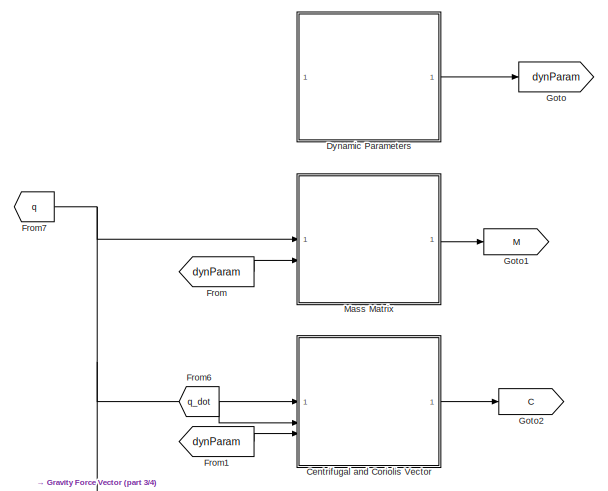
[diagram: root canvas - part 1/4, top left region]
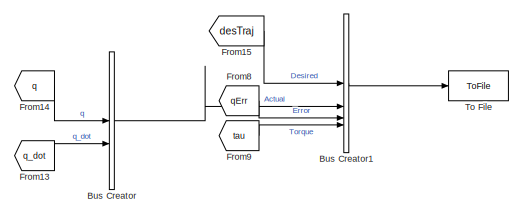
[diagram: root canvas - part 2/4, top right region]
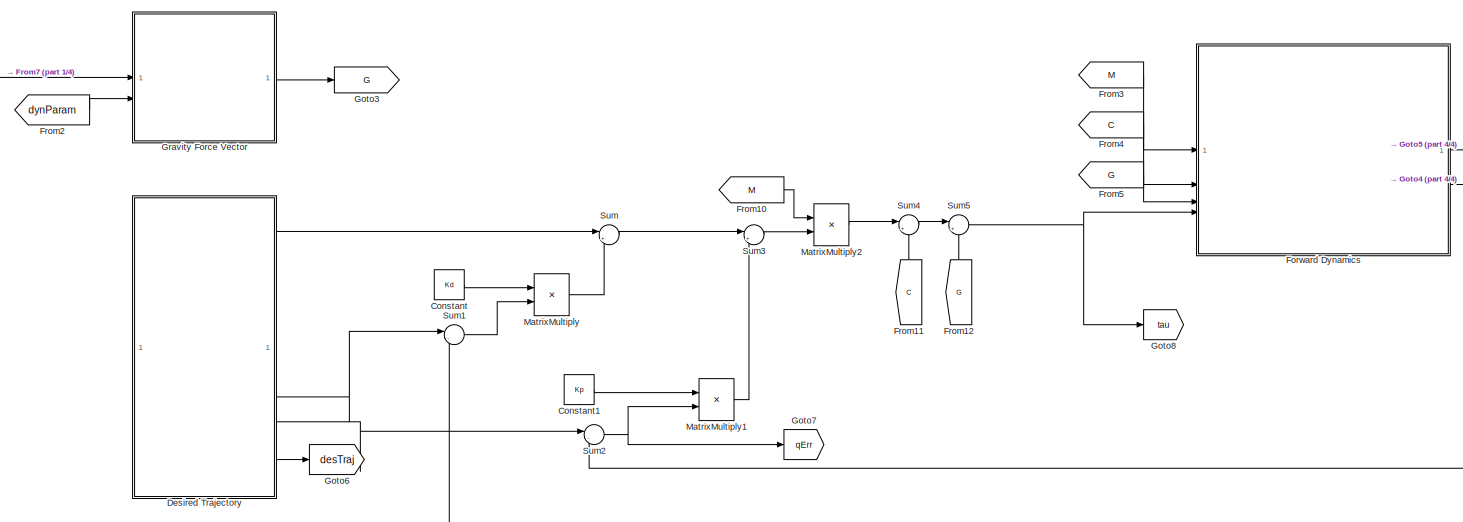
[diagram: root canvas - part 3/4, full width, bottom band]
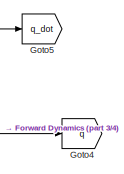
[diagram: root canvas - part 4/4, middle right region]
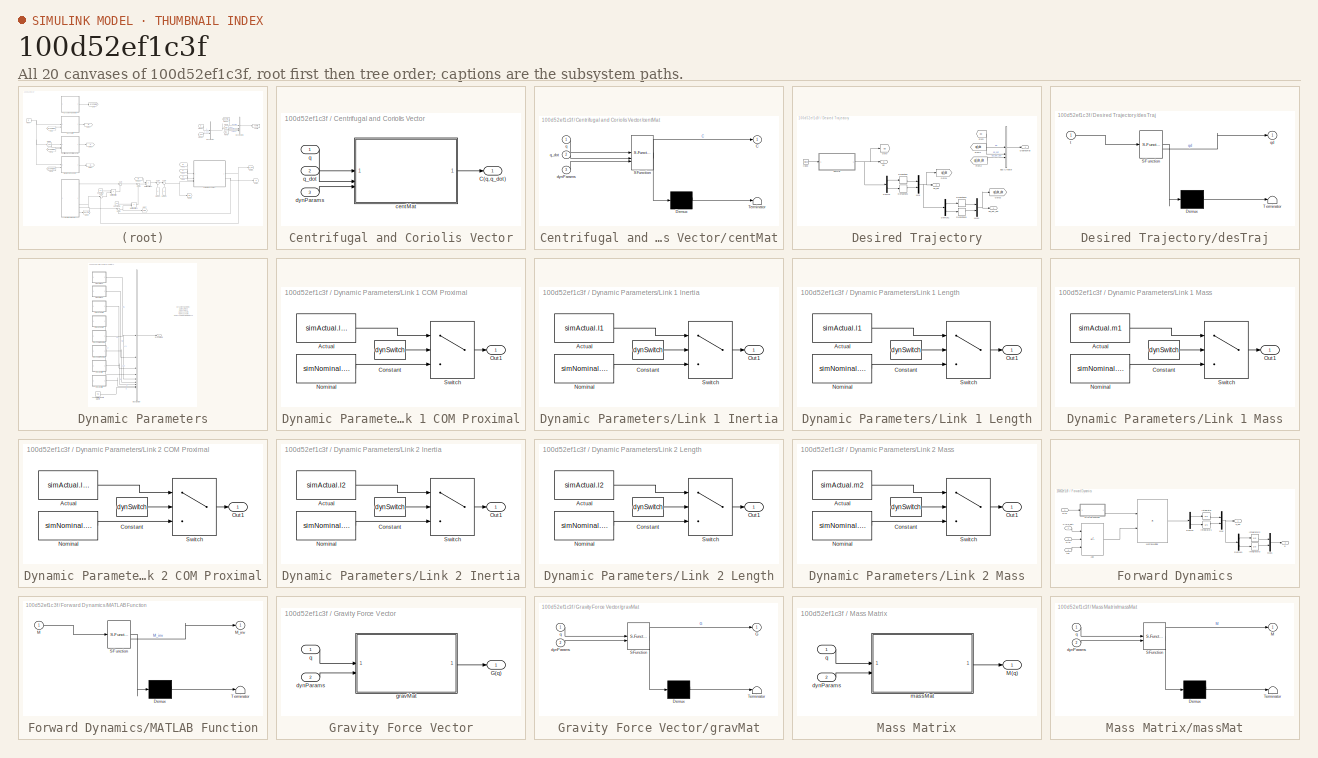
[diagram: thumbnail index - all 20 canvases of the model, root first then tree order]
MODEL slx_100d52ef1c3f
KIND model
CONFIG AbsTol = auto
CONFIG EnableMultiTasking = off
CONFIG FixedStep = 0.001
CONFIG MaxStep = auto
CONFIG MinStep = auto
CONFIG RelTol = 1e-3
CONFIG SampleTimeConstraint = Unconstrained
CONFIG SolverName = FixedStepAuto
CONFIG StartTime = 0.0
CONFIG StopTime = 10
BLOCK [BusCreator] Bus Creator
  DisplayOption = bar
  InheritFromInputs = on
  Inputs = 2
BLOCK [BusCreator] Bus Creator1
  DisplayOption = bar
  InheritFromInputs = on
  Inputs = 4
BLOCK [SubSystem] Centrifugal and Coriolis Vector
BLOCK [Outport] Centrifugal and Coriolis Vector/C(q,q_dot)
BLOCK [SubSystem] Centrifugal and Coriolis Vector/centMat
  ErrorFcn = Stateflow.Translate.translate
  LibrarySourceBlock = simulink/User-Defined\nFunctions/MATLAB Function
  PermitHierarchicalResolution = ExplicitOnly
  SFBlockType = MATLAB Function
  TreatAsAtomicUnit = on
BLOCK [Demux] Centrifugal and Coriolis Vector/centMat/ Demux 
  Outputs = 1
BLOCK [S-Function] Centrifugal and Coriolis Vector/centMat/ SFunction 
  EnableBusSupport = on
  FunctionName = sf_sfun
  PortCounts = [3 2]
  SFcnIsStateOwnerBlock = off
  SFunctionDeploymentMode = off
  Tag = Stateflow S-Function 1
BLOCK [Terminator] Centrifugal and Coriolis Vector/centMat/ Terminator 
BLOCK [Outport] Centrifugal and Coriolis Vector/centMat/C
BLOCK [Inport] Centrifugal and Coriolis Vector/centMat/dynParams
  Port = 3
BLOCK [Inport] Centrifugal and Coriolis Vector/centMat/q
BLOCK [Inport] Centrifugal and Coriolis Vector/centMat/q_dot
  Port = 2
BLOCK [Inport] Centrifugal and Coriolis Vector/dynParams
  Port = 3
BLOCK [Inport] Centrifugal and Coriolis Vector/q
BLOCK [Inport] Centrifugal and Coriolis Vector/q_dot
  Port = 2
BLOCK [Constant] Constant
  Value = Kd
BLOCK [Constant] Constant1
  Value = Kp
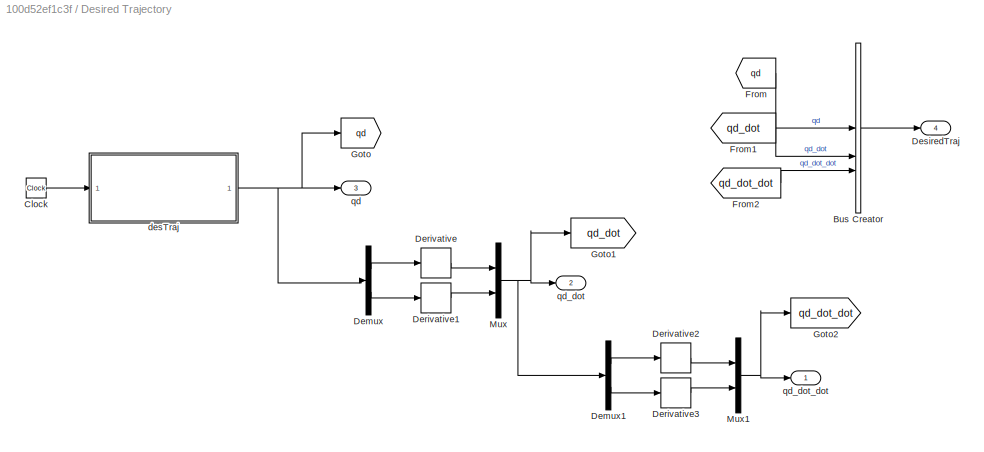
BLOCK [SubSystem] Desired Trajectory
BLOCK [BusCreator] Desired Trajectory/Bus Creator
  DisplayOption = bar
  InheritFromInputs = on
  Inputs = 3
BLOCK [Clock] Desired Trajectory/Clock
BLOCK [Demux] Desired Trajectory/Demux
  Outputs = 2
BLOCK [Demux] Desired Trajectory/Demux1
  Outputs = 2
BLOCK [Derivative] Desired Trajectory/Derivative
BLOCK [Derivative] Desired Trajectory/Derivative1
BLOCK [Derivative] Desired Trajectory/Derivative2
BLOCK [Derivative] Desired Trajectory/Derivative3
BLOCK [Outport] Desired Trajectory/DesiredTraj
  Port = 4
BLOCK [From] Desired Trajectory/From
  GotoTag = qd
BLOCK [From] Desired Trajectory/From1
  GotoTag = qd_dot
BLOCK [From] Desired Trajectory/From2
  GotoTag = qd_dot_dot
BLOCK [Goto] Desired Trajectory/Goto
  GotoTag = qd
BLOCK [Goto] Desired Trajectory/Goto1
  GotoTag = qd_dot
BLOCK [Goto] Desired Trajectory/Goto2
  GotoTag = qd_dot_dot
BLOCK [Mux] Desired Trajectory/Mux
  DisplayOption = bar
  Inputs = 2
BLOCK [Mux] Desired Trajectory/Mux1
  DisplayOption = bar
  Inputs = 2
BLOCK [SubSystem] Desired Trajectory/desTraj
  ErrorFcn = Stateflow.Translate.translate
  LibrarySourceBlock = simulink/User-Defined\nFunctions/MATLAB Function
  PermitHierarchicalResolution = ExplicitOnly
  SFBlockType = MATLAB Function
  TreatAsAtomicUnit = on
BLOCK [Demux] Desired Trajectory/desTraj/ Demux 
  Outputs = 1
BLOCK [S-Function] Desired Trajectory/desTraj/ SFunction 
  EnableBusSupport = on
  FunctionName = sf_sfun
  PortCounts = [1 2]
  SFcnIsStateOwnerBlock = off
  SFunctionDeploymentMode = off
  Tag = Stateflow S-Function 4
BLOCK [Terminator] Desired Trajectory/desTraj/ Terminator 
BLOCK [Outport] Desired Trajectory/desTraj/qd
BLOCK [Inport] Desired Trajectory/desTraj/t
BLOCK [Outport] Desired Trajectory/qd
  Port = 3
BLOCK [Outport] Desired Trajectory/qd_dot
  Port = 2
BLOCK [Outport] Desired Trajectory/qd_dot_dot
BLOCK [SubSystem] Dynamic Parameters
BLOCK [Constant] Dynamic Parameters/Acceleration due to gravity
  Value = 9.8
BLOCK [BusCreator] Dynamic Parameters/Bus Creator
  DisplayOption = bar
  InheritFromInputs = on
  Inputs = 9
BLOCK [SubSystem] Dynamic Parameters/Link 1 COM Proximal
BLOCK [Constant] Dynamic Parameters/Link 1 COM Proximal/Actual 
  Value = simActual.lc1
BLOCK [Constant] Dynamic Parameters/Link 1 COM Proximal/Constant
  Value = dynSwitch
BLOCK [Constant] Dynamic Parameters/Link 1 COM Proximal/Nominal
  Value = simNominal.lc1
BLOCK [Outport] Dynamic Parameters/Link 1 COM Proximal/Out1
BLOCK [Switch] Dynamic Parameters/Link 1 COM Proximal/Switch
  Criteria = u2 > Threshold
  InputSameDT = off
  SaturateOnIntegerOverflow = off
BLOCK [SubSystem] Dynamic Parameters/Link 1 Inertia
BLOCK [Constant] Dynamic Parameters/Link 1 Inertia/Actual 
  Value = simActual.I1
BLOCK [Constant] Dynamic Parameters/Link 1 Inertia/Constant
  Value = dynSwitch
BLOCK [Constant] Dynamic Parameters/Link 1 Inertia/Nominal
  Value = simNominal.I1
BLOCK [Outport] Dynamic Parameters/Link 1 Inertia/Out1
BLOCK [Switch] Dynamic Parameters/Link 1 Inertia/Switch
  Criteria = u2 > Threshold
  InputSameDT = off
  SaturateOnIntegerOverflow = off
BLOCK [SubSystem] Dynamic Parameters/Link 1 Length
BLOCK [Constant] Dynamic Parameters/Link 1 Length/Actual 
  Value = simActual.l1
BLOCK [Constant] Dynamic Parameters/Link 1 Length/Constant
  Value = dynSwitch
BLOCK [Constant] Dynamic Parameters/Link 1 Length/Nominal
  Value = simNominal.l1
BLOCK [Outport] Dynamic Parameters/Link 1 Length/Out1
BLOCK [Switch] Dynamic Parameters/Link 1 Length/Switch
  Criteria = u2 > Threshold
  InputSameDT = off
  SaturateOnIntegerOverflow = off
BLOCK [SubSystem] Dynamic Parameters/Link 1 Mass
BLOCK [Constant] Dynamic Parameters/Link 1 Mass/Actual 
  Value = simActual.m1
BLOCK [Constant] Dynamic Parameters/Link 1 Mass/Constant
  Value = dynSwitch
BLOCK [Constant] Dynamic Parameters/Link 1 Mass/Nominal
  Value = simNominal.m1
BLOCK [Outport] Dynamic Parameters/Link 1 Mass/Out1
BLOCK [Switch] Dynamic Parameters/Link 1 Mass/Switch
  Criteria = u2 > Threshold
  InputSameDT = off
  SaturateOnIntegerOverflow = off
BLOCK [SubSystem] Dynamic Parameters/Link 2 COM Proximal
BLOCK [Constant] Dynamic Parameters/Link 2 COM Proximal/Actual 
  Value = simActual.lc2
BLOCK [Constant] Dynamic Parameters/Link 2 COM Proximal/Constant
  Value = dynSwitch
BLOCK [Constant] Dynamic Parameters/Link 2 COM Proximal/Nominal
  Value = simNominal.lc2
BLOCK [Outport] Dynamic Parameters/Link 2 COM Proximal/Out1
BLOCK [Switch] Dynamic Parameters/Link 2 COM Proximal/Switch
  Criteria = u2 > Threshold
  InputSameDT = off
  SaturateOnIntegerOverflow = off
BLOCK [SubSystem] Dynamic Parameters/Link 2 Inertia
BLOCK [Constant] Dynamic Parameters/Link 2 Inertia/Actual 
  Value = simActual.I2
BLOCK [Constant] Dynamic Parameters/Link 2 Inertia/Constant
  Value = dynSwitch
BLOCK [Constant] Dynamic Parameters/Link 2 Inertia/Nominal
  Value = simNominal.I2
BLOCK [Outport] Dynamic Parameters/Link 2 Inertia/Out1
BLOCK [Switch] Dynamic Parameters/Link 2 Inertia/Switch
  Criteria = u2 > Threshold
  InputSameDT = off
  SaturateOnIntegerOverflow = off
BLOCK [SubSystem] Dynamic Parameters/Link 2 Length
BLOCK [Constant] Dynamic Parameters/Link 2 Length/Actual 
  Value = simActual.l2
BLOCK [Constant] Dynamic Parameters/Link 2 Length/Constant
  Value = dynSwitch
BLOCK [Constant] Dynamic Parameters/Link 2 Length/Nominal
  Value = simNominal.l2
BLOCK [Outport] Dynamic Parameters/Link 2 Length/Out1
BLOCK [Switch] Dynamic Parameters/Link 2 Length/Switch
  Criteria = u2 > Threshold
  InputSameDT = off
  SaturateOnIntegerOverflow = off
BLOCK [SubSystem] Dynamic Parameters/Link 2 Mass
BLOCK [Constant] Dynamic Parameters/Link 2 Mass/Actual 
  Value = simActual.m2
BLOCK [Constant] Dynamic Parameters/Link 2 Mass/Constant
  Value = dynSwitch
BLOCK [Constant] Dynamic Parameters/Link 2 Mass/Nominal
  Value = simNominal.m2
BLOCK [Outport] Dynamic Parameters/Link 2 Mass/Out1
BLOCK [Switch] Dynamic Parameters/Link 2 Mass/Switch
  Criteria = u2 > Threshold
  InputSameDT = off
  SaturateOnIntegerOverflow = off
BLOCK [Outport] Dynamic Parameters/dynParams
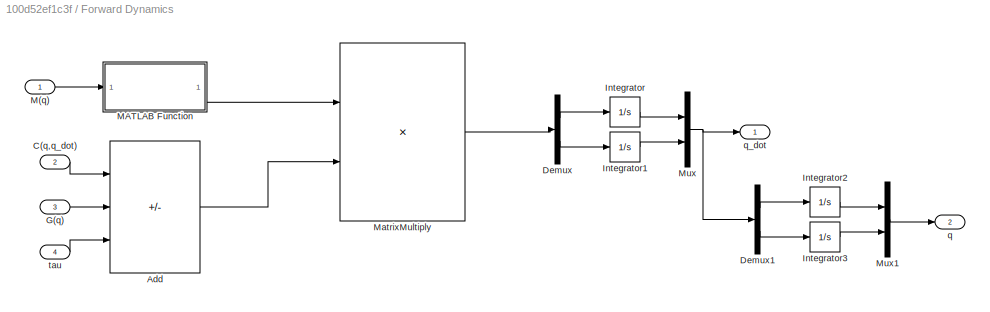
BLOCK [SubSystem] Forward Dynamics
BLOCK [Sum] Forward Dynamics/Add
  IconShape = rectangular
  Inputs = --+
BLOCK [Inport] Forward Dynamics/C(q,q_dot)
  Port = 2
BLOCK [Demux] Forward Dynamics/Demux
  Outputs = 2
BLOCK [Demux] Forward Dynamics/Demux1
  Outputs = 2
BLOCK [Inport] Forward Dynamics/G(q)
  Port = 3
BLOCK [Integrator] Forward Dynamics/Integrator
  InitialCondition = q1_dot_init
BLOCK [Integrator] Forward Dynamics/Integrator1
  InitialCondition = q2_dot_init
BLOCK [Integrator] Forward Dynamics/Integrator2
  InitialCondition = q1_init
BLOCK [Integrator] Forward Dynamics/Integrator3
  InitialCondition = q2_init
BLOCK [Inport] Forward Dynamics/M(q)
BLOCK [SubSystem] Forward Dynamics/MATLAB Function
  ErrorFcn = Stateflow.Translate.translate
  LibrarySourceBlock = simulink/User-Defined\nFunctions/MATLAB Function
  PermitHierarchicalResolution = ExplicitOnly
  SFBlockType = MATLAB Function
  TreatAsAtomicUnit = on
BLOCK [Demux] Forward Dynamics/MATLAB Function/ Demux 
  Outputs = 1
BLOCK [S-Function] Forward Dynamics/MATLAB Function/ SFunction 
  EnableBusSupport = on
  FunctionName = sf_sfun
  PortCounts = [1 2]
  SFcnIsStateOwnerBlock = off
  SFunctionDeploymentMode = off
  Tag = Stateflow S-Function 5
BLOCK [Terminator] Forward Dynamics/MATLAB Function/ Terminator 
BLOCK [Inport] Forward Dynamics/MATLAB Function/M
BLOCK [Outport] Forward Dynamics/MATLAB Function/M_inv
BLOCK [Product] Forward Dynamics/MatrixMultiply
  Multiplication = Matrix(*)
BLOCK [Mux] Forward Dynamics/Mux
  DisplayOption = bar
  Inputs = 2
BLOCK [Mux] Forward Dynamics/Mux1
  DisplayOption = bar
  Inputs = 2
BLOCK [Outport] Forward Dynamics/q
  Port = 2
  PortDimensions = 2
BLOCK [Outport] Forward Dynamics/q_dot
  PortDimensions = 2
BLOCK [Inport] Forward Dynamics/tau
  Port = 4
BLOCK [From] From
  GotoTag = dynParam
BLOCK [From] From1
  GotoTag = dynParam
BLOCK [From] From10
  GotoTag = M
BLOCK [From] From11
  GotoTag = C
  NameLocation = right
BLOCK [From] From12
  GotoTag = G
  NameLocation = right
BLOCK [From] From13
  GotoTag = q_dot
BLOCK [From] From14
  GotoTag = q
BLOCK [From] From15
  GotoTag = desTraj
BLOCK [From] From2
  GotoTag = dynParam
BLOCK [From] From3
  GotoTag = M
BLOCK [From] From4
  GotoTag = C
BLOCK [From] From5
  GotoTag = G
BLOCK [From] From6
  GotoTag = q_dot
BLOCK [From] From7
  GotoTag = q
BLOCK [From] From8
  GotoTag = qErr
BLOCK [From] From9
  GotoTag = tau
BLOCK [Goto] Goto
  GotoTag = dynParam
BLOCK [Goto] Goto1
  GotoTag = M
BLOCK [Goto] Goto2
  GotoTag = C
BLOCK [Goto] Goto3
  GotoTag = G
BLOCK [Goto] Goto4
  GotoTag = q
BLOCK [Goto] Goto5
  GotoTag = q_dot
BLOCK [Goto] Goto6
  GotoTag = desTraj
BLOCK [Goto] Goto7
  GotoTag = qErr
BLOCK [Goto] Goto8
  GotoTag = tau
BLOCK [SubSystem] Gravity Force Vector
BLOCK [Outport] Gravity Force Vector/G(q)
BLOCK [Inport] Gravity Force Vector/dynParams
  Port = 2
BLOCK [SubSystem] Gravity Force Vector/gravMat
  ErrorFcn = Stateflow.Translate.translate
  LibrarySourceBlock = simulink/User-Defined\nFunctions/MATLAB Function
  PermitHierarchicalResolution = ExplicitOnly
  SFBlockType = MATLAB Function
  TreatAsAtomicUnit = on
BLOCK [Demux] Gravity Force Vector/gravMat/ Demux 
  Outputs = 1
BLOCK [S-Function] Gravity Force Vector/gravMat/ SFunction 
  EnableBusSupport = on
  FunctionName = sf_sfun
  PortCounts = [2 2]
  SFcnIsStateOwnerBlock = off
  SFunctionDeploymentMode = off
  Tag = Stateflow S-Function 3
BLOCK [Terminator] Gravity Force Vector/gravMat/ Terminator 
BLOCK [Outport] Gravity Force Vector/gravMat/G
BLOCK [Inport] Gravity Force Vector/gravMat/dynParams
  Port = 2
BLOCK [Inport] Gravity Force Vector/gravMat/q
BLOCK [Inport] Gravity Force Vector/q
BLOCK [SubSystem] Mass Matrix
BLOCK [Outport] Mass Matrix/M(q)
BLOCK [Inport] Mass Matrix/dynParams
  Port = 2
BLOCK [SubSystem] Mass Matrix/massMat
  ErrorFcn = Stateflow.Translate.translate
  LibrarySourceBlock = simulink/User-Defined\nFunctions/MATLAB Function
  PermitHierarchicalResolution = ExplicitOnly
  SFBlockType = MATLAB Function
  TreatAsAtomicUnit = on
BLOCK [Demux] Mass Matrix/massMat/ Demux 
  Outputs = 1
BLOCK [S-Function] Mass Matrix/massMat/ SFunction 
  EnableBusSupport = on
  FunctionName = sf_sfun
  PortCounts = [2 2]
  SFcnIsStateOwnerBlock = off
  SFunctionDeploymentMode = off
  Tag = Stateflow S-Function 2
BLOCK [Terminator] Mass Matrix/massMat/ Terminator 
BLOCK [Outport] Mass Matrix/massMat/M
BLOCK [Inport] Mass Matrix/massMat/dynParams
  Port = 2
BLOCK [Inport] Mass Matrix/massMat/q
BLOCK [Inport] Mass Matrix/q
BLOCK [Product] MatrixMultiply
  Multiplication = Matrix(*)
BLOCK [Product] MatrixMultiply1
  Multiplication = Matrix(*)
BLOCK [Product] MatrixMultiply2
  Multiplication = Matrix(*)
BLOCK [Sum] Sum
  Inputs = |+-
BLOCK [Sum] Sum1
  Inputs = |-+
BLOCK [Sum] Sum2
  Inputs = |-+
BLOCK [Sum] Sum3
  Inputs = |+-
BLOCK [Sum] Sum4
  Inputs = |++
BLOCK [Sum] Sum5
  Inputs = |++
BLOCK [ToFile] To File
  Filename = result.mat
  SaveFormat = Timeseries
ANNOTATION Dynamic Parameters: Dynamic Parameters: 1). Link 1 Mass 2). Link 2 Mass 3). Link 1 Length 4). Link 2 Length 5). Link 1 COM Proximal Distance 6). Link 2 COM Proximal Distance 7). Link 1 Inertia 8). Link 2 Inertia 9). Gravity Acceleration
LINE Bus Creator1:1 -> To File:1
LINE Bus Creator:1 -> Bus Creator1:2
LINE Centrifugal and Coriolis Vector/centMat:1 -> Centrifugal and Coriolis Vector/C(q,q_dot):1
LINE Centrifugal and Coriolis Vector/dynParams:1 -> Centrifugal and Coriolis Vector/centMat:3
LINE Centrifugal and Coriolis Vector/q:1 -> Centrifugal and Coriolis Vector/centMat:1
LINE Centrifugal and Coriolis Vector/q_dot:1 -> Centrifugal and Coriolis Vector/centMat:2
LINE Centrifugal and Coriolis Vector:1 -> Goto2:1
LINE Constant1:1 -> MatrixMultiply1:1
LINE Constant:1 -> MatrixMultiply:1
LINE Desired Trajectory/Bus Creator:1 -> Desired Trajectory/DesiredTraj:1
LINE Desired Trajectory/Clock:1 -> Desired Trajectory/desTraj:1
LINE Desired Trajectory/Demux1:1 -> Desired Trajectory/Derivative2:1
LINE Desired Trajectory/Demux1:2 -> Desired Trajectory/Derivative3:1
LINE Desired Trajectory/Demux:1 -> Desired Trajectory/Derivative:1
LINE Desired Trajectory/Demux:2 -> Desired Trajectory/Derivative1:1
LINE Desired Trajectory/Derivative1:1 -> Desired Trajectory/Mux:2
LINE Desired Trajectory/Derivative2:1 -> Desired Trajectory/Mux1:1
LINE Desired Trajectory/Derivative3:1 -> Desired Trajectory/Mux1:2
LINE Desired Trajectory/Derivative:1 -> Desired Trajectory/Mux:1
LINE Desired Trajectory/From1:1 -> Desired Trajectory/Bus Creator:2
LINE Desired Trajectory/From2:1 -> Desired Trajectory/Bus Creator:3
LINE Desired Trajectory/From:1 -> Desired Trajectory/Bus Creator:1
NET Desired Trajectory/Mux1:1 -> Desired Trajectory/Goto2:1, Desired Trajectory/qd_dot_dot:1
NET Desired Trajectory/Mux:1 -> Desired Trajectory/Demux1:1, Desired Trajectory/Goto1:1, Desired Trajectory/qd_dot:1
NET Desired Trajectory/desTraj:1 -> Desired Trajectory/Demux:1, Desired Trajectory/Goto:1, Desired Trajectory/qd:1
LINE Desired Trajectory:1 -> Sum:1
LINE Desired Trajectory:2 -> Sum1:1
LINE Desired Trajectory:3 -> Sum2:1
LINE Desired Trajectory:4 -> Goto6:1
LINE Dynamic Parameters/Acceleration due to gravity:1 -> Dynamic Parameters/Bus Creator:9
LINE Dynamic Parameters/Bus Creator:1 -> Dynamic Parameters/dynParams:1
LINE Dynamic Parameters/Link 1 COM Proximal/Actual :1 -> Dynamic Parameters/Link 1 COM Proximal/Switch:1
LINE Dynamic Parameters/Link 1 COM Proximal/Constant:1 -> Dynamic Parameters/Link 1 COM Proximal/Switch:2
LINE Dynamic Parameters/Link 1 COM Proximal/Nominal:1 -> Dynamic Parameters/Link 1 COM Proximal/Switch:3
LINE Dynamic Parameters/Link 1 COM Proximal/Switch:1 -> Dynamic Parameters/Link 1 COM Proximal/Out1:1
LINE Dynamic Parameters/Link 1 COM Proximal:1 -> Dynamic Parameters/Bus Creator:5
LINE Dynamic Parameters/Link 1 Inertia/Actual :1 -> Dynamic Parameters/Link 1 Inertia/Switch:1
LINE Dynamic Parameters/Link 1 Inertia/Constant:1 -> Dynamic Parameters/Link 1 Inertia/Switch:2
LINE Dynamic Parameters/Link 1 Inertia/Nominal:1 -> Dynamic Parameters/Link 1 Inertia/Switch:3
LINE Dynamic Parameters/Link 1 Inertia/Switch:1 -> Dynamic Parameters/Link 1 Inertia/Out1:1
LINE Dynamic Parameters/Link 1 Inertia:1 -> Dynamic Parameters/Bus Creator:7
LINE Dynamic Parameters/Link 1 Length/Actual :1 -> Dynamic Parameters/Link 1 Length/Switch:1
LINE Dynamic Parameters/Link 1 Length/Constant:1 -> Dynamic Parameters/Link 1 Length/Switch:2
LINE Dynamic Parameters/Link 1 Length/Nominal:1 -> Dynamic Parameters/Link 1 Length/Switch:3
LINE Dynamic Parameters/Link 1 Length/Switch:1 -> Dynamic Parameters/Link 1 Length/Out1:1
LINE Dynamic Parameters/Link 1 Length:1 -> Dynamic Parameters/Bus Creator:3
LINE Dynamic Parameters/Link 1 Mass/Actual :1 -> Dynamic Parameters/Link 1 Mass/Switch:1
LINE Dynamic Parameters/Link 1 Mass/Constant:1 -> Dynamic Parameters/Link 1 Mass/Switch:2
LINE Dynamic Parameters/Link 1 Mass/Nominal:1 -> Dynamic Parameters/Link 1 Mass/Switch:3
LINE Dynamic Parameters/Link 1 Mass/Switch:1 -> Dynamic Parameters/Link 1 Mass/Out1:1
LINE Dynamic Parameters/Link 1 Mass:1 -> Dynamic Parameters/Bus Creator:1
LINE Dynamic Parameters/Link 2 COM Proximal/Actual :1 -> Dynamic Parameters/Link 2 COM Proximal/Switch:1
LINE Dynamic Parameters/Link 2 COM Proximal/Constant:1 -> Dynamic Parameters/Link 2 COM Proximal/Switch:2
LINE Dynamic Parameters/Link 2 COM Proximal/Nominal:1 -> Dynamic Parameters/Link 2 COM Proximal/Switch:3
LINE Dynamic Parameters/Link 2 COM Proximal/Switch:1 -> Dynamic Parameters/Link 2 COM Proximal/Out1:1
LINE Dynamic Parameters/Link 2 COM Proximal:1 -> Dynamic Parameters/Bus Creator:6
LINE Dynamic Parameters/Link 2 Inertia/Actual :1 -> Dynamic Parameters/Link 2 Inertia/Switch:1
LINE Dynamic Parameters/Link 2 Inertia/Constant:1 -> Dynamic Parameters/Link 2 Inertia/Switch:2
LINE Dynamic Parameters/Link 2 Inertia/Nominal:1 -> Dynamic Parameters/Link 2 Inertia/Switch:3
LINE Dynamic Parameters/Link 2 Inertia/Switch:1 -> Dynamic Parameters/Link 2 Inertia/Out1:1
LINE Dynamic Parameters/Link 2 Inertia:1 -> Dynamic Parameters/Bus Creator:8
LINE Dynamic Parameters/Link 2 Length/Actual :1 -> Dynamic Parameters/Link 2 Length/Switch:1
LINE Dynamic Parameters/Link 2 Length/Constant:1 -> Dynamic Parameters/Link 2 Length/Switch:2
LINE Dynamic Parameters/Link 2 Length/Nominal:1 -> Dynamic Parameters/Link 2 Length/Switch:3
LINE Dynamic Parameters/Link 2 Length/Switch:1 -> Dynamic Parameters/Link 2 Length/Out1:1
LINE Dynamic Parameters/Link 2 Length:1 -> Dynamic Parameters/Bus Creator:4
LINE Dynamic Parameters/Link 2 Mass/Actual :1 -> Dynamic Parameters/Link 2 Mass/Switch:1
LINE Dynamic Parameters/Link 2 Mass/Constant:1 -> Dynamic Parameters/Link 2 Mass/Switch:2
LINE Dynamic Parameters/Link 2 Mass/Nominal:1 -> Dynamic Parameters/Link 2 Mass/Switch:3
LINE Dynamic Parameters/Link 2 Mass/Switch:1 -> Dynamic Parameters/Link 2 Mass/Out1:1
LINE Dynamic Parameters/Link 2 Mass:1 -> Dynamic Parameters/Bus Creator:2
LINE Dynamic Parameters:1 -> Goto:1
LINE Forward Dynamics/Add:1 -> Forward Dynamics/MatrixMultiply:2
LINE Forward Dynamics/C(q,q_dot):1 -> Forward Dynamics/Add:1
LINE Forward Dynamics/Demux1:1 -> Forward Dynamics/Integrator2:1
LINE Forward Dynamics/Demux1:2 -> Forward Dynamics/Integrator3:1
LINE Forward Dynamics/Demux:1 -> Forward Dynamics/Integrator:1
LINE Forward Dynamics/Demux:2 -> Forward Dynamics/Integrator1:1
LINE Forward Dynamics/G(q):1 -> Forward Dynamics/Add:2
LINE Forward Dynamics/Integrator1:1 -> Forward Dynamics/Mux:2
LINE Forward Dynamics/Integrator2:1 -> Forward Dynamics/Mux1:1
LINE Forward Dynamics/Integrator3:1 -> Forward Dynamics/Mux1:2
LINE Forward Dynamics/Integrator:1 -> Forward Dynamics/Mux:1
LINE Forward Dynamics/M(q):1 -> Forward Dynamics/MATLAB Function:1
LINE Forward Dynamics/MATLAB Function:1 -> Forward Dynamics/MatrixMultiply:1
LINE Forward Dynamics/MatrixMultiply:1 -> Forward Dynamics/Demux:1
LINE Forward Dynamics/Mux1:1 -> Forward Dynamics/q:1
NET Forward Dynamics/Mux:1 -> Forward Dynamics/Demux1:1, Forward Dynamics/q_dot:1
LINE Forward Dynamics/tau:1 -> Forward Dynamics/Add:3
NET Forward Dynamics:1 -> Goto5:1, Sum1:2
NET Forward Dynamics:2 -> Goto4:1, Sum2:2
LINE From10:1 -> MatrixMultiply2:1
LINE From11:1 -> Sum4:2
LINE From12:1 -> Sum5:2
LINE From13:1 -> Bus Creator:2
LINE From14:1 -> Bus Creator:1
LINE From15:1 -> Bus Creator1:1
LINE From1:1 -> Centrifugal and Coriolis Vector:3
LINE From2:1 -> Gravity Force Vector:2
LINE From3:1 -> Forward Dynamics:1
LINE From4:1 -> Forward Dynamics:2
LINE From5:1 -> Forward Dynamics:3
LINE From6:1 -> Centrifugal and Coriolis Vector:2
NET From7:1 -> Centrifugal and Coriolis Vector:1, Gravity Force Vector:1, Mass Matrix:1
LINE From8:1 -> Bus Creator1:3
LINE From9:1 -> Bus Creator1:4
LINE From:1 -> Mass Matrix:2
LINE Gravity Force Vector/dynParams:1 -> Gravity Force Vector/gravMat:2
LINE Gravity Force Vector/gravMat:1 -> Gravity Force Vector/G(q):1
LINE Gravity Force Vector/q:1 -> Gravity Force Vector/gravMat:1
LINE Gravity Force Vector:1 -> Goto3:1
LINE Mass Matrix/dynParams:1 -> Mass Matrix/massMat:2
LINE Mass Matrix/massMat:1 -> Mass Matrix/M(q):1
LINE Mass Matrix/q:1 -> Mass Matrix/massMat:1
LINE Mass Matrix:1 -> Goto1:1
LINE MatrixMultiply1:1 -> Sum3:2
LINE MatrixMultiply2:1 -> Sum4:1
LINE MatrixMultiply:1 -> Sum:2
LINE Sum1:1 -> MatrixMultiply:2
NET Sum2:1 -> Goto7:1, MatrixMultiply1:2
LINE Sum3:1 -> MatrixMultiply2:2
LINE Sum4:1 -> Sum5:1
NET Sum5:1 -> Forward Dynamics:4, Goto8:1
LINE Sum:1 -> Sum3:1
note: NET lines group one-source signal fan-out (src -> all destinations, sorted); 1:1 wires keep LINE
CHART Mass Matrix/massMat states=1 transitions=1
  STATE_LABEL 'eML_blk_kernel()'
  STATE_LABEL 'SCRIPT:\nfunction M = massMat(q,dynParams)\nm1 = dynParams(1);\nm2 = dynParams(2);\nl1 = dynParams(3);\nl2 = dynParams(4);\nlc1 = dynParams(5);\nlc2 = dynParams(6);\nI1 = dynParams(7);\nI2 = dynParams(8);\nm11 = m1*lc1*lc1 + m2*(l1*l1 + lc2*lc2) + 2*m2*l1*lc2*cos(q(2)) + I1 + I2;\nm12 = m2*lc2*lc2 + m2*l1*lc2*cos(q(2)) + I2;\nm21 = m12;\nm22 = m2*lc2*lc2 + I2;\nM = [m11,m12;\n    m21,m22];\n\n'
CHART Gravity Force Vector/gravMat states=1 transitions=1
  STATE_LABEL 'eML_blk_kernel()'
  STATE_LABEL 'SCRIPT:\nfunction G = gravMat(q,dynParams)\nm1 = dynParams(1);\nm2 = dynParams(2);\nl1 = dynParams(3);\nl2 = dynParams(4);\nlc1 = dynParams(5);\nlc2 = dynParams(6);\ng = dynParams(9);\ng1 = m1*lc1*g*cos(q(1)) + m2*g*(lc2*cos(q(1) + q(2)) + l1*cos(q(1)));\ng2 = m2*lc2*g*cos(q(1) + q(2));\nG = [g1;g2];\n\n'
CHART Desired Trajectory/desTraj states=1 transitions=1
  STATE_LABEL 'eML_blk_kernel()'
  STATE_LABEL 'SCRIPT:\nfunction qd = desTraj(t)\n\nqd1 = (1-exp(-0.05*t))*sin(pi*t);\nqd2 = (1-exp(-0.05*t))*sin(pi*t);\nqd = [qd1;qd2];\n'
CHART Forward Dynamics/MATLAB Function states=1 transitions=1
  STATE_LABEL 'eML_blk_kernel()'
  STATE_LABEL 'SCRIPT:\nfunction M_inv = invertM(M)\n\nM_inv = M\\eye(size(M));\n'
CHART Centrifugal and Coriolis Vector/centMat states=1 transitions=1
  STATE_LABEL 'eML_blk_kernel()'
  STATE_LABEL 'SCRIPT:\nfunction C = centMat(q,q_dot,dynParams)\nm1 = dynParams(1);\nm2 = dynParams(2);\nl1 = dynParams(3);\nl2 = dynParams(4);\nlc1 = dynParams(5);\nlc2 = dynParams(6);\nI1 = dynParams(7);\nI2 = dynParams(8);\nc1 = -2*m2*l1*lc2*q_dot(1)*q_dot(2)*sin(q(2)) - m2*l1*lc2*q_dot(2)*q_dot(2)*sin(q(2));\nc2 = m2*l1*lc2*q_dot(1)*q_dot(1)*sin(q(2));\nC = [c1;c2];\n'
CHART  states=0 transitions=0
CHART  states=0 transitions=0
CHART  states=0 transitions=0
CHART  states=0 transitions=0
CHART  states=0 transitions=0
